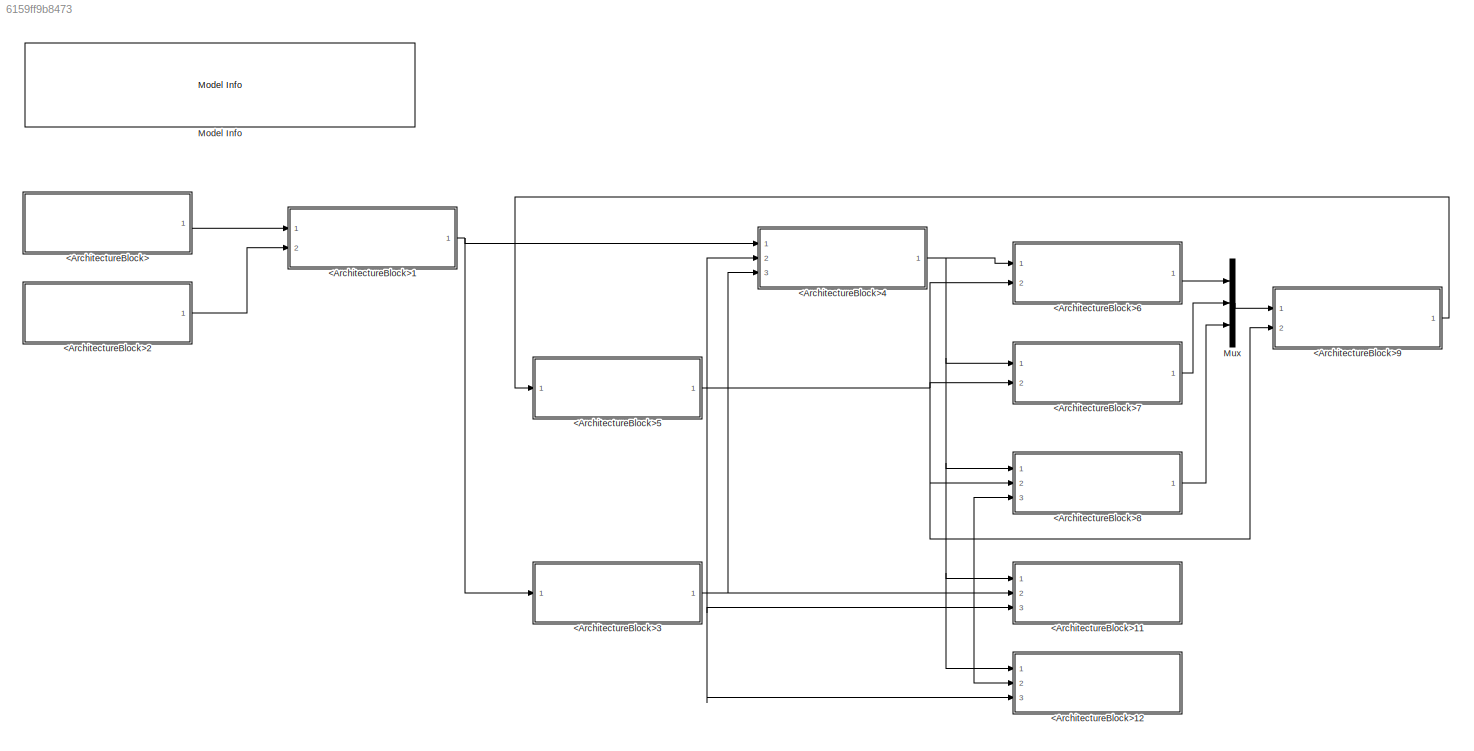
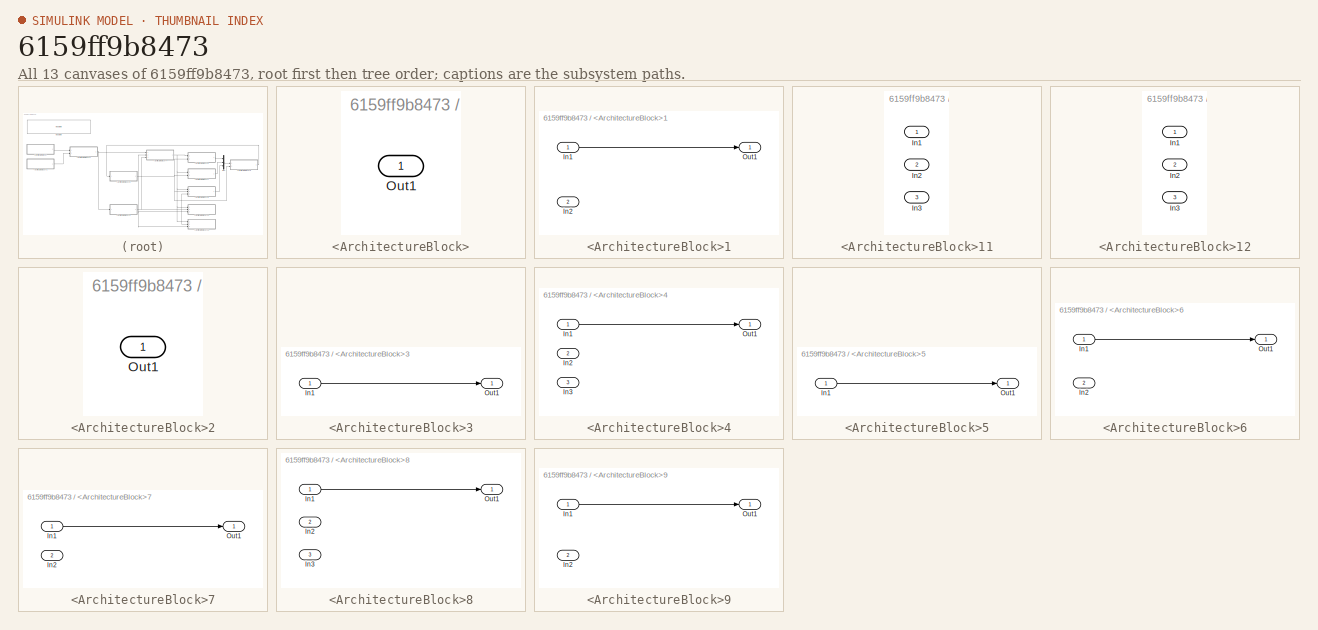
[diagram: thumbnail index - all 13 canvases of the model, root first then tree order]
MODEL slx_6159ff9b8473
KIND model
CONFIG AbsTol = auto
CONFIG EnableMultiTasking = off
CONFIG FixedStep = auto
CONFIG MaxStep = auto
CONFIG MinStep = auto
CONFIG RelTol = 1e-3
CONFIG SampleTimeConstraint = Unconstrained
CONFIG Solver = VariableStepAuto
CONFIG SolverName = VariableStepAuto
CONFIG StartTime = 0.0
CONFIG StopTime = 10.0
BLOCK [SubSystem] <ArchitectureBlock>
  AncestorBlock = SbPaC_Lib/<ArchitectureBlock>
  Ports = [0, 1]
  RequestExecContextInheritance = off
  Variant = off
BLOCK [Outport] <ArchitectureBlock>/Out1
  IconDisplay = Port number
BLOCK [SubSystem] <ArchitectureBlock>1
  AncestorBlock = SbPaC_Lib/<ArchitectureBlock>
  Ports = [2, 1]
  RequestExecContextInheritance = off
  Variant = off
BLOCK [Inport] <ArchitectureBlock>1/In1
  IconDisplay = Port number
BLOCK [Inport] <ArchitectureBlock>1/In2
  IconDisplay = Port number
  Port = 2
BLOCK [Outport] <ArchitectureBlock>1/Out1
  IconDisplay = Port number
BLOCK [SubSystem] <ArchitectureBlock>11
  AncestorBlock = SbPaC_Lib/<ArchitectureBlock>
  Ports = [3]
  RequestExecContextInheritance = off
  Variant = off
BLOCK [Inport] <ArchitectureBlock>11/In1
  IconDisplay = Port number
BLOCK [Inport] <ArchitectureBlock>11/In2
  IconDisplay = Port number
  Port = 2
BLOCK [Inport] <ArchitectureBlock>11/In3
  IconDisplay = Port number
  Port = 3
BLOCK [SubSystem] <ArchitectureBlock>12
  AncestorBlock = SbPaC_Lib/<ArchitectureBlock>
  Ports = [3]
  RequestExecContextInheritance = off
  Variant = off
BLOCK [Inport] <ArchitectureBlock>12/In1
  IconDisplay = Port number
BLOCK [Inport] <ArchitectureBlock>12/In2
  IconDisplay = Port number
  Port = 2
BLOCK [Inport] <ArchitectureBlock>12/In3
  IconDisplay = Port number
  Port = 3
BLOCK [SubSystem] <ArchitectureBlock>2
  AncestorBlock = SbPaC_Lib/<ArchitectureBlock>
  Ports = [0, 1]
  RequestExecContextInheritance = off
  Variant = off
BLOCK [Outport] <ArchitectureBlock>2/Out1
  IconDisplay = Port number
BLOCK [SubSystem] <ArchitectureBlock>3
  AncestorBlock = SbPaC_Lib/<ArchitectureBlock>
  Ports = [1, 1]
  RequestExecContextInheritance = off
  Variant = off
BLOCK [Inport] <ArchitectureBlock>3/In1
  IconDisplay = Port number
BLOCK [Outport] <ArchitectureBlock>3/Out1
  IconDisplay = Port number
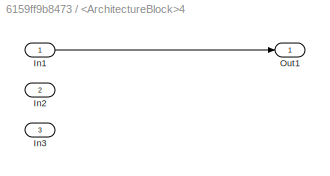
BLOCK [SubSystem] <ArchitectureBlock>4
  AncestorBlock = SbPaC_Lib/<ArchitectureBlock>
  Ports = [3, 1]
  RequestExecContextInheritance = off
  Variant = off
BLOCK [Inport] <ArchitectureBlock>4/In1
  IconDisplay = Port number
BLOCK [Inport] <ArchitectureBlock>4/In2
  IconDisplay = Port number
  Port = 2
BLOCK [Inport] <ArchitectureBlock>4/In3
  IconDisplay = Port number
  Port = 3
BLOCK [Outport] <ArchitectureBlock>4/Out1
  IconDisplay = Port number
BLOCK [SubSystem] <ArchitectureBlock>5
  AncestorBlock = SbPaC_Lib/<ArchitectureBlock>
  Ports = [1, 1]
  RequestExecContextInheritance = off
  Variant = off
BLOCK [Inport] <ArchitectureBlock>5/In1
  IconDisplay = Port number
BLOCK [Outport] <ArchitectureBlock>5/Out1
  IconDisplay = Port number
BLOCK [SubSystem] <ArchitectureBlock>6
  AncestorBlock = SbPaC_Lib/<ArchitectureBlock>
  Ports = [2, 1]
  RequestExecContextInheritance = off
  Variant = off
BLOCK [Inport] <ArchitectureBlock>6/In1
  IconDisplay = Port number
BLOCK [Inport] <ArchitectureBlock>6/In2
  IconDisplay = Port number
  Port = 2
BLOCK [Outport] <ArchitectureBlock>6/Out1
  IconDisplay = Port number
BLOCK [SubSystem] <ArchitectureBlock>7
  AncestorBlock = SbPaC_Lib/<ArchitectureBlock>
  Ports = [2, 1]
  RequestExecContextInheritance = off
  Variant = off
BLOCK [Inport] <ArchitectureBlock>7/In1
  IconDisplay = Port number
BLOCK [Inport] <ArchitectureBlock>7/In2
  IconDisplay = Port number
  Port = 2
BLOCK [Outport] <ArchitectureBlock>7/Out1
  IconDisplay = Port number
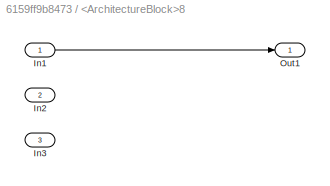
BLOCK [SubSystem] <ArchitectureBlock>8
  AncestorBlock = SbPaC_Lib/<ArchitectureBlock>
  Ports = [3, 1]
  RequestExecContextInheritance = off
  Variant = off
BLOCK [Inport] <ArchitectureBlock>8/In1
  IconDisplay = Port number
BLOCK [Inport] <ArchitectureBlock>8/In2
  IconDisplay = Port number
  Port = 2
BLOCK [Inport] <ArchitectureBlock>8/In3
  IconDisplay = Port number
  Port = 3
BLOCK [Outport] <ArchitectureBlock>8/Out1
  IconDisplay = Port number
BLOCK [SubSystem] <ArchitectureBlock>9
  AncestorBlock = SbPaC_Lib/<ArchitectureBlock>
  Ports = [2, 1]
  RequestExecContextInheritance = off
  Variant = off
BLOCK [Inport] <ArchitectureBlock>9/In1
  IconDisplay = Port number
BLOCK [Inport] <ArchitectureBlock>9/In2
  IconDisplay = Port number
  Port = 2
BLOCK [Outport] <ArchitectureBlock>9/Out1
  IconDisplay = Port number
BLOCK [Reference] Model Info  REF=DX_Lib/Misc. Lib/Model Info
  Ports = []
  SourceBlock = DX_Lib/Misc. Lib/Model Info
  SourceProductName = ACE Lab: DX Blockset
  SourceType = CMBlock
BLOCK [Mux] Mux
  DisplayOption = bar
  Inputs = 3
  Ports = [3, 1]
NET <ArchitectureBlock>1:1 -> <ArchitectureBlock>3:1, <ArchitectureBlock>4:1
LINE <ArchitectureBlock>2:1 -> <ArchitectureBlock>1:2
NET <ArchitectureBlock>3:1 -> <ArchitectureBlock>11:2, <ArchitectureBlock>12:2, <ArchitectureBlock>4:3, <ArchitectureBlock>8:3
NET <ArchitectureBlock>4:1 -> <ArchitectureBlock>11:1, <ArchitectureBlock>12:1, <ArchitectureBlock>6:1, <ArchitectureBlock>7:1, <ArchitectureBlock>8:1
NET <ArchitectureBlock>5:1 -> <ArchitectureBlock>11:3, <ArchitectureBlock>12:3, <ArchitectureBlock>4:2, <ArchitectureBlock>6:2, <ArchitectureBlock>7:2, <ArchitectureBlock>8:2, <ArchitectureBlock>9:2
LINE <ArchitectureBlock>6:1 -> Mux:1
LINE <ArchitectureBlock>7:1 -> Mux:2
LINE <ArchitectureBlock>8:1 -> Mux:3
LINE <ArchitectureBlock>9:1 -> <ArchitectureBlock>5:1
LINE <ArchitectureBlock>:1 -> <ArchitectureBlock>1:1
LINE Mux:1 -> <ArchitectureBlock>9:1
note: NET lines group one-source signal fan-out (src -> all destinations, sorted); 1:1 wires keep LINE
